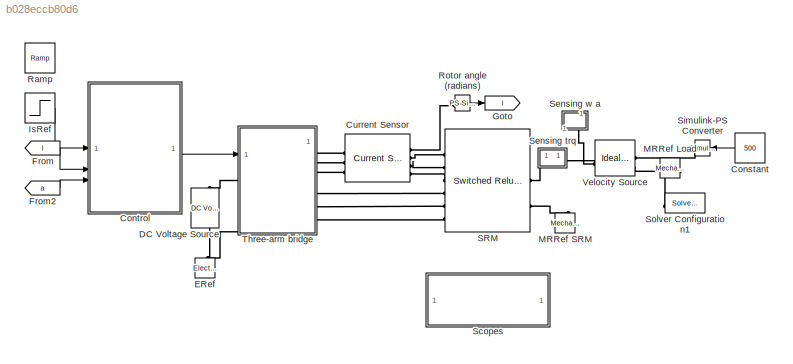
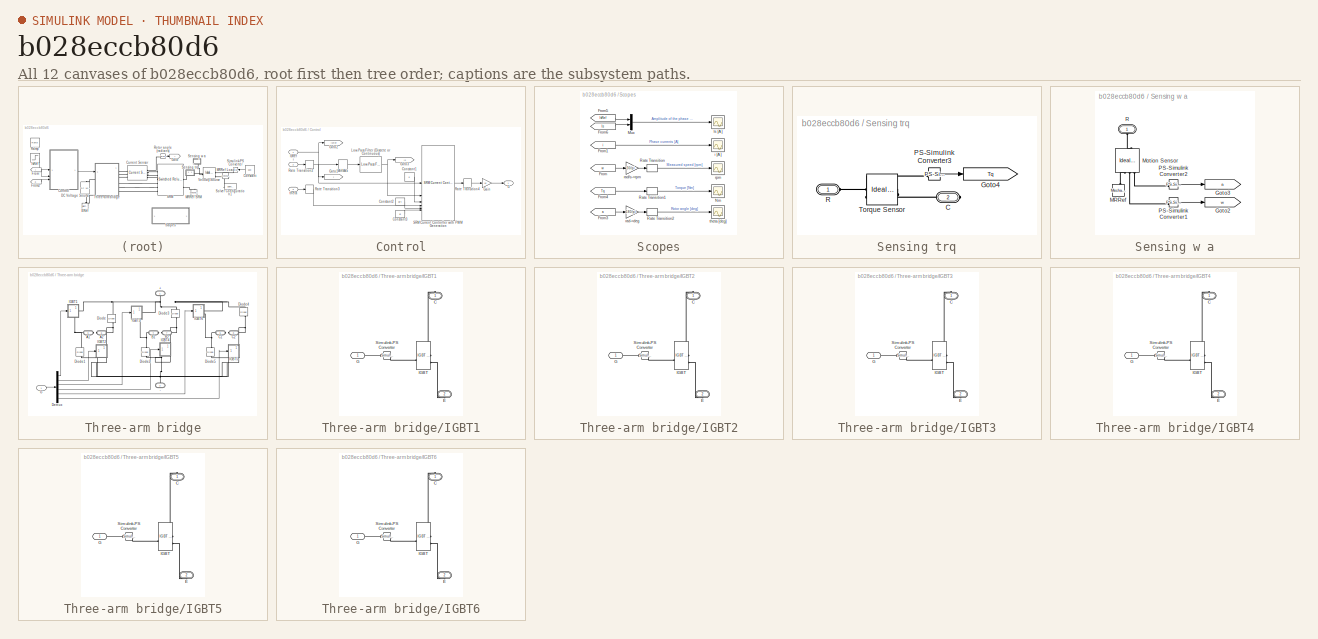
[diagram: thumbnail index - all 12 canvases of the model, root first then tree order]
MODEL slx_b028eccb80d6
KIND model
CONFIG AbsTol = auto
CONFIG EnableMultiTasking = on
CONFIG FixedStep = 1e-4
CONFIG MaxStep = auto
CONFIG MinStep = auto
CONFIG PreLoadFcn = SRMCurrentControlData;
CONFIG RelTol = 1e-3
CONFIG SampleTimeConstraint = Unconstrained
CONFIG SolverName = VariableStepAuto
CONFIG StartTime = 0.0
CONFIG StopTime = 1.5
BLOCK [Constant] Constant
  NameLocation = top
  Value = 500
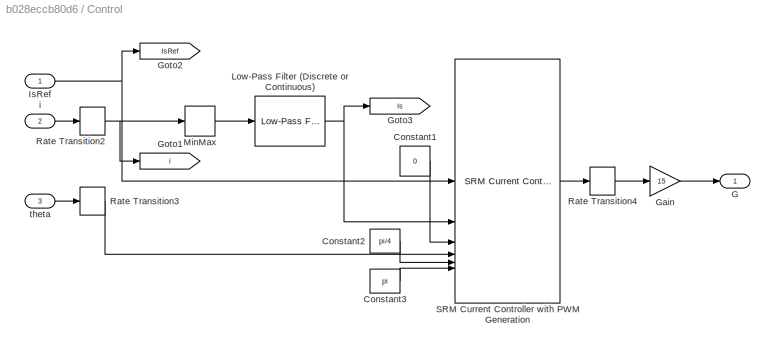
BLOCK [SubSystem] Control
BLOCK [Constant] Control/Constant1
  SampleTime = Tsc
  Value = 0
BLOCK [Constant] Control/Constant2
  NameLocation = top
  SampleTime = Tsc
  Value = pi/4
BLOCK [Constant] Control/Constant3
  NameLocation = top
  SampleTime = Tsc
  Value = pi
BLOCK [Outport] Control/G
  VectorParamsAs1DForOutWhenUnconnected = off
BLOCK [Gain] Control/Gain
  Gain = 15
BLOCK [Goto] Control/Goto1
  GotoTag = i
  TagVisibility = global
BLOCK [Goto] Control/Goto2
  GotoTag = IsRef
  TagVisibility = global
BLOCK [Goto] Control/Goto3
  GotoTag = Is
  TagVisibility = global
BLOCK [Inport] Control/IsRef
BLOCK [Reference] Control/Low-Pass Filter (Discrete or Continuous)  REF=eeGeneralControl/Low-Pass Filter
(Discrete or Continuous)
  SourceBlock = eeGeneralControl/Low-Pass Filter\n(Discrete or Continuous)
  SourceType = Low-Pass Filter (Discrete or Continuous)
BLOCK [MinMax] Control/MinMax
  Function = max
BLOCK [RateTransition] Control/Rate Transition2
  OutPortSampleTime = Tsc
BLOCK [RateTransition] Control/Rate Transition3
  OutPortSampleTime = Tsc
BLOCK [RateTransition] Control/Rate Transition4
BLOCK [Reference] Control/SRM Current Controller with PWM Generation  REF=eeSrmCurrentController/SRM Current Controller
with PWM Generation
  SourceBlock = eeSrmCurrentController/SRM Current Controller\nwith PWM Generation
  SourceType = SRM Current Controller with PWM Generation
BLOCK [Inport] Control/i
  Port = 2
BLOCK [Inport] Control/theta
  Port = 3
BLOCK [Reference] Current Sensor  REF=ee_lib/Sensors &
Transducers/Current Sensor
(Three-Phase)
  SourceBlock = ee_lib/Sensors &\nTransducers/Current Sensor\n(Three-Phase)
  SourceType = Current Sensor\n(Three-Phase)
BLOCK [Reference] DC Voltage Source  REF=fl_lib/Electrical/Electrical Sources/DC Voltage Source
  NameLocation = left
  SourceBlock = fl_lib/Electrical/Electrical Sources/DC Voltage Source
  SourceType = DC Voltage Source
BLOCK [Reference] ERef  REF=fl_lib/Electrical/Electrical Elements/Electrical Reference
  NameLocation = right
  SourceBlock = fl_lib/Electrical/Electrical Elements/Electrical Reference
  SourceType = Electrical Reference
BLOCK [From] From
  GotoTag = I
  TagVisibility = global
BLOCK [From] From2
  GotoTag = a
  TagVisibility = global
BLOCK [Goto] Goto
  GotoTag = I
  TagVisibility = global
BLOCK [Step] IsRef
  After = 100
  Before = 40
  SampleTime = Tsc
  Time = 0.75
BLOCK [Reference] MRRef Load  REF=fl_lib/Mechanical/Rotational Elements/Mechanical
Rotational Reference
  SourceBlock = fl_lib/Mechanical/Rotational Elements/Mechanical\nRotational Reference
  SourceType = Mechanical\nRotational Reference
BLOCK [Reference] MRRef SRM  REF=fl_lib/Mechanical/Rotational Elements/Mechanical
Rotational Reference
  NameLocation = left
  SourceBlock = fl_lib/Mechanical/Rotational Elements/Mechanical\nRotational Reference
  SourceType = Mechanical\nRotational Reference
BLOCK [Reference] Ramp  REF=simulink/Sources/Ramp
  Commented = on
  SourceBlock = simulink/Sources/Ramp
  SourceType = Ramp
BLOCK [Reference] Rotor angle (radians)  REF=nesl_utility/PS-Simulink
Converter
  NameLocation = top
  SourceBlock = nesl_utility/PS-Simulink\nConverter
  SourceType = PS-Simulink\nConverter
BLOCK [Reference] SRM  REF=ee_lib/Electromechanical/Reluctance & Stepper/Switched Reluctance
Machine
  SourceBlock = ee_lib/Electromechanical/Reluctance & Stepper/Switched Reluctance\nMachine
  SourceType = Switched Reluctance\nMachine
BLOCK [SubSystem] Scopes
BLOCK [From] Scopes/From
  GotoTag = w
  TagVisibility = global
BLOCK [From] Scopes/From1
  GotoTag = i
  TagVisibility = global
BLOCK [From] Scopes/From3
  GotoTag = a
  TagVisibility = global
BLOCK [From] Scopes/From4
  GotoTag = Tq
  TagVisibility = global
BLOCK [From] Scopes/From5
  GotoTag = IsRef
  TagVisibility = global
BLOCK [From] Scopes/From6
  GotoTag = Is
  TagVisibility = global
BLOCK [Scope] Scopes/Is [A]
  Floating = off
  NumInputPorts = 1
  ScopeSpecificationString = Simulink.scopes.TimeScopeBlockCfg('CurrentConfiguration', extmgr.ConfigurationSet(extmgr.Configuration('Core','General UI',true,'FigureColor',[1 1 1]),extmgr.Configuration('Core','Source UI',true),extmgr.Configuration('Sources','WiredSimulink',true,'DataLoggingVariableName','ScopeData2'),extmgr.Configuration('Visuals','Time Domain',true,'SerializedDisplays',{struct('MinYLimReal','-13.58176','MaxYL...<+1872ch>
BLOCK [Mux] Scopes/Mux
  DisplayOption = bar
  Inputs = 2
BLOCK [Scope] Scopes/Nm
  Floating = off
  NumInputPorts = 1
  ScopeSpecificationString = Simulink.scopes.TimeScopeBlockCfg('CurrentConfiguration', extmgr.ConfigurationSet(extmgr.Configuration('Core','General UI',true,'FigureColor',[1 1 1]),extmgr.Configuration('Core','Source UI',true),extmgr.Configuration('Sources','WiredSimulink',true,'DataLoggingVariableName','ScopeData1'),extmgr.Configuration('Visuals','Time Domain',true,'SerializedDisplays',{struct('MinYLimReal','-8.37189','MaxYLi...<+1682ch>
BLOCK [RateTransition] Scopes/Rate Transition
  OutPortSampleTime = Ts
BLOCK [RateTransition] Scopes/Rate Transition1
  OutPortSampleTime = Ts
BLOCK [RateTransition] Scopes/Rate Transition2
  OutPortSampleTime = Ts
BLOCK [Scope] Scopes/i [A]
  Floating = off
  NumInputPorts = 1
  ScopeSpecificationString = Simulink.scopes.TimeScopeBlockCfg('CurrentConfiguration', extmgr.ConfigurationSet(extmgr.Configuration('Core','General UI',true,'FigureColor',[1 1 1]),extmgr.Configuration('Core','Source UI',true),extmgr.Configuration('Sources','WiredSimulink',true),extmgr.Configuration('Visuals','Time Domain',true,'SerializedDisplays',{struct('MinYLimReal','-3.1447','MaxYLimReal','54.88247','YLabelReal','','MinYL...<+1659ch>
BLOCK [Gain] Scopes/rad->deg
  Gain = 180/pi
BLOCK [Gain] Scopes/rad//s->rpm
  Gain = 30/pi
BLOCK [Scope] Scopes/rpm
  Floating = off
  NumInputPorts = 1
  ScopeSpecificationString = Simulink.scopes.TimeScopeBlockCfg('CurrentConfiguration', extmgr.ConfigurationSet(extmgr.Configuration('Core','General UI',true),extmgr.Configuration('Core','Source UI',true),extmgr.Configuration('Sources','WiredSimulink',true,'DataLoggingVariableName','ScopeData2'),extmgr.Configuration('Visuals','Time Domain',true,'SerializedDisplays',{struct('MinYLimReal','400.00000','MaxYLimReal','600.00000','Y...<+1466ch>
BLOCK [Scope] Scopes/theta [deg]
  Floating = off
  NumInputPorts = 1
  ScopeSpecificationString = Simulink.scopes.TimeScopeBlockCfg('CurrentConfiguration', extmgr.ConfigurationSet(extmgr.Configuration('Core','General UI',true),extmgr.Configuration('Core','Source UI',true),extmgr.Configuration('Sources','WiredSimulink',true,'DataLoggingVariableName','ScopeData1'),extmgr.Configuration('Visuals','Time Domain',true,'SerializedDisplays',{struct('MinYLimReal','-562.5','MaxYLimReal','5062.5','YLabelR...<+1443ch>
BLOCK [SubSystem] Sensing trq
BLOCK [PMIOPort] Sensing trq/C
  Port = 2
  Side = Right
BLOCK [Goto] Sensing trq/Goto4
  GotoTag = Tq
  TagVisibility = global
BLOCK [Reference] Sensing trq/PS-Simulink Converter3  REF=nesl_utility/PS-Simulink
Converter
  SourceBlock = nesl_utility/PS-Simulink\nConverter
  SourceType = PS-Simulink\nConverter
BLOCK [PMIOPort] Sensing trq/R
  Side = Left
BLOCK [Reference] Sensing trq/Torque Sensor  REF=fl_lib/Mechanical/Mechanical Sensors/Ideal Torque Sensor
  SourceBlock = fl_lib/Mechanical/Mechanical Sensors/Ideal Torque Sensor
  SourceType = Ideal Torque Sensor
BLOCK [SubSystem] Sensing w a
  NameLocation = right
BLOCK [Goto] Sensing w a/Goto2
  GotoTag = w
  TagVisibility = global
BLOCK [Goto] Sensing w a/Goto3
  GotoTag = a
  TagVisibility = global
BLOCK [Reference] Sensing w a/MRRef  REF=fl_lib/Mechanical/Rotational Elements/Mechanical
Rotational Reference
  NameLocation = left
  SourceBlock = fl_lib/Mechanical/Rotational Elements/Mechanical\nRotational Reference
  SourceType = Mechanical\nRotational Reference
BLOCK [Reference] Sensing w a/Motion Sensor  REF=fl_lib/Mechanical/Mechanical Sensors/Ideal Rotational
Motion Sensor
  NameLocation = right
  SourceBlock = fl_lib/Mechanical/Mechanical Sensors/Ideal Rotational\nMotion Sensor
  SourceType = Ideal Rotational\nMotion Sensor
BLOCK [Reference] Sensing w a/PS-Simulink Converter1  REF=nesl_utility/PS-Simulink
Converter
  SourceBlock = nesl_utility/PS-Simulink\nConverter
  SourceType = PS-Simulink\nConverter
BLOCK [Reference] Sensing w a/PS-Simulink Converter2  REF=nesl_utility/PS-Simulink
Converter
  SourceBlock = nesl_utility/PS-Simulink\nConverter
  SourceType = PS-Simulink\nConverter
BLOCK [PMIOPort] Sensing w a/R
  NameLocation = right
  Side = Left
BLOCK [Reference] Simulink-PS Converter  REF=nesl_utility/Simulink-PS
Converter
  SourceBlock = nesl_utility/Simulink-PS\nConverter
  SourceType = Simulink-PS\nConverter
BLOCK [Reference] Solver Configuration1  REF=nesl_utility/Solver
Configuration
  SourceBlock = nesl_utility/Solver\nConfiguration
  SourceType = Solver\nConfiguration
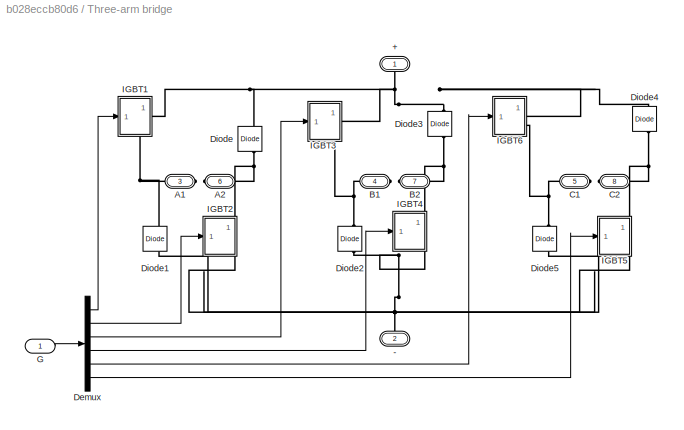
BLOCK [SubSystem] Three-arm bridge
  Tag = PublishSubsystem
BLOCK [PMIOPort] Three-arm bridge/+
  NameLocation = right
  Side = Left
BLOCK [PMIOPort] Three-arm bridge/-
  NameLocation = right
  Port = 2
  Side = Left
BLOCK [PMIOPort] Three-arm bridge/A1
  Port = 3
  Side = Right
BLOCK [PMIOPort] Three-arm bridge/A2
  Port = 6
  Side = Right
BLOCK [PMIOPort] Three-arm bridge/B1
  Port = 4
  Side = Right
BLOCK [PMIOPort] Three-arm bridge/B2
  Port = 7
  Side = Right
BLOCK [PMIOPort] Three-arm bridge/C1
  Port = 5
  Side = Right
BLOCK [PMIOPort] Three-arm bridge/C2
  Port = 8
  Side = Right
BLOCK [Demux] Three-arm bridge/Demux
  Outputs = 6
BLOCK [Reference] Three-arm bridge/Diode  REF=ee_lib/Semiconductors &
Converters/Diode
  NameLocation = right
  SourceBlock = ee_lib/Semiconductors &\nConverters/Diode
  SourceType = Diode
BLOCK [Reference] Three-arm bridge/Diode1  REF=ee_lib/Semiconductors &
Converters/Diode
  NameLocation = right
  SourceBlock = ee_lib/Semiconductors &\nConverters/Diode
  SourceType = Diode
BLOCK [Reference] Three-arm bridge/Diode2  REF=ee_lib/Semiconductors &
Converters/Diode
  NameLocation = right
  SourceBlock = ee_lib/Semiconductors &\nConverters/Diode
  SourceType = Diode
BLOCK [Reference] Three-arm bridge/Diode3  REF=ee_lib/Semiconductors &
Converters/Diode
  NameLocation = right
  SourceBlock = ee_lib/Semiconductors &\nConverters/Diode
  SourceType = Diode
BLOCK [Reference] Three-arm bridge/Diode4  REF=ee_lib/Semiconductors &
Converters/Diode
  NameLocation = right
  SourceBlock = ee_lib/Semiconductors &\nConverters/Diode
  SourceType = Diode
BLOCK [Reference] Three-arm bridge/Diode5  REF=ee_lib/Semiconductors &
Converters/Diode
  NameLocation = right
  SourceBlock = ee_lib/Semiconductors &\nConverters/Diode
  SourceType = Diode
BLOCK [Inport] Three-arm bridge/G
BLOCK [SubSystem] Three-arm bridge/IGBT1
BLOCK [PMIOPort] Three-arm bridge/IGBT1/C
  NameLocation = right
  Side = Right
BLOCK [PMIOPort] Three-arm bridge/IGBT1/E
  NameLocation = left
  Port = 2
  Side = Right
BLOCK [Inport] Three-arm bridge/IGBT1/G
BLOCK [Reference] Three-arm bridge/IGBT1/IGBT  REF=ee_lib/Semiconductors &
Converters/IGBT
(Ideal,
Switching)
  SourceBlock = ee_lib/Semiconductors &\nConverters/IGBT\n(Ideal,\nSwitching)
  SourceType = IGBT\n(Ideal,\nSwitching)
BLOCK [Reference] Three-arm bridge/IGBT1/Simulink-PS Converter  REF=nesl_utility/Simulink-PS
Converter
  SourceBlock = nesl_utility/Simulink-PS\nConverter
  SourceType = Simulink-PS\nConverter
BLOCK [SubSystem] Three-arm bridge/IGBT2
BLOCK [PMIOPort] Three-arm bridge/IGBT2/C
  NameLocation = right
  Side = Right
BLOCK [PMIOPort] Three-arm bridge/IGBT2/E
  NameLocation = left
  Port = 2
  Side = Right
BLOCK [Inport] Three-arm bridge/IGBT2/G
BLOCK [Reference] Three-arm bridge/IGBT2/IGBT  REF=ee_lib/Semiconductors &
Converters/IGBT
(Ideal,
Switching)
  SourceBlock = ee_lib/Semiconductors &\nConverters/IGBT\n(Ideal,\nSwitching)
  SourceType = IGBT\n(Ideal,\nSwitching)
BLOCK [Reference] Three-arm bridge/IGBT2/Simulink-PS Converter  REF=nesl_utility/Simulink-PS
Converter
  SourceBlock = nesl_utility/Simulink-PS\nConverter
  SourceType = Simulink-PS\nConverter
BLOCK [SubSystem] Three-arm bridge/IGBT3
BLOCK [PMIOPort] Three-arm bridge/IGBT3/C
  NameLocation = right
  Side = Right
BLOCK [PMIOPort] Three-arm bridge/IGBT3/E
  NameLocation = left
  Port = 2
  Side = Right
BLOCK [Inport] Three-arm bridge/IGBT3/G
BLOCK [Reference] Three-arm bridge/IGBT3/IGBT  REF=ee_lib/Semiconductors &
Converters/IGBT
(Ideal,
Switching)
  SourceBlock = ee_lib/Semiconductors &\nConverters/IGBT\n(Ideal,\nSwitching)
  SourceType = IGBT\n(Ideal,\nSwitching)
BLOCK [Reference] Three-arm bridge/IGBT3/Simulink-PS Converter  REF=nesl_utility/Simulink-PS
Converter
  SourceBlock = nesl_utility/Simulink-PS\nConverter
  SourceType = Simulink-PS\nConverter
BLOCK [SubSystem] Three-arm bridge/IGBT4
BLOCK [PMIOPort] Three-arm bridge/IGBT4/C
  NameLocation = right
  Side = Right
BLOCK [PMIOPort] Three-arm bridge/IGBT4/E
  NameLocation = left
  Port = 2
  Side = Right
BLOCK [Inport] Three-arm bridge/IGBT4/G
BLOCK [Reference] Three-arm bridge/IGBT4/IGBT  REF=ee_lib/Semiconductors &
Converters/IGBT
(Ideal,
Switching)
  SourceBlock = ee_lib/Semiconductors &\nConverters/IGBT\n(Ideal,\nSwitching)
  SourceType = IGBT\n(Ideal,\nSwitching)
BLOCK [Reference] Three-arm bridge/IGBT4/Simulink-PS Converter  REF=nesl_utility/Simulink-PS
Converter
  SourceBlock = nesl_utility/Simulink-PS\nConverter
  SourceType = Simulink-PS\nConverter
BLOCK [SubSystem] Three-arm bridge/IGBT5
BLOCK [PMIOPort] Three-arm bridge/IGBT5/C
  NameLocation = right
  Side = Right
BLOCK [PMIOPort] Three-arm bridge/IGBT5/E
  NameLocation = left
  Port = 2
  Side = Right
BLOCK [Inport] Three-arm bridge/IGBT5/G
BLOCK [Reference] Three-arm bridge/IGBT5/IGBT  REF=ee_lib/Semiconductors &
Converters/IGBT
(Ideal,
Switching)
  SourceBlock = ee_lib/Semiconductors &\nConverters/IGBT\n(Ideal,\nSwitching)
  SourceType = IGBT\n(Ideal,\nSwitching)
BLOCK [Reference] Three-arm bridge/IGBT5/Simulink-PS Converter  REF=nesl_utility/Simulink-PS
Converter
  SourceBlock = nesl_utility/Simulink-PS\nConverter
  SourceType = Simulink-PS\nConverter
BLOCK [SubSystem] Three-arm bridge/IGBT6
BLOCK [PMIOPort] Three-arm bridge/IGBT6/C
  NameLocation = right
  Side = Right
BLOCK [PMIOPort] Three-arm bridge/IGBT6/E
  NameLocation = left
  Port = 2
  Side = Right
BLOCK [Inport] Three-arm bridge/IGBT6/G
BLOCK [Reference] Three-arm bridge/IGBT6/IGBT  REF=ee_lib/Semiconductors &
Converters/IGBT
(Ideal,
Switching)
  SourceBlock = ee_lib/Semiconductors &\nConverters/IGBT\n(Ideal,\nSwitching)
  SourceType = IGBT\n(Ideal,\nSwitching)
BLOCK [Reference] Three-arm bridge/IGBT6/Simulink-PS Converter  REF=nesl_utility/Simulink-PS
Converter
  SourceBlock = nesl_utility/Simulink-PS\nConverter
  SourceType = Simulink-PS\nConverter
BLOCK [Reference] Velocity Source  REF=fl_lib/Mechanical/Mechanical Sources/Ideal Angular
Velocity Source
  SourceBlock = fl_lib/Mechanical/Mechanical Sources/Ideal Angular\nVelocity Source
  SourceType = Ideal Angular\nVelocity Source
LINE Constant:1 -> Simulink-PS Converter:1
LINE Control/Constant1:1 -> Control/SRM Current Controller with PWM Generation:3
LINE Control/Constant2:1 -> Control/SRM Current Controller with PWM Generation:5
LINE Control/Constant3:1 -> Control/SRM Current Controller with PWM Generation:6
LINE Control/Gain:1 -> Control/G:1
NET Control/IsRef:1 -> Control/Goto2:1, Control/SRM Current Controller with PWM Generation:1
NET Control/Low-Pass Filter (Discrete or Continuous):1 -> Control/Goto3:1, Control/SRM Current Controller with PWM Generation:2
LINE Control/MinMax:1 -> Control/Low-Pass Filter (Discrete or Continuous):1
NET Control/Rate Transition2:1 -> Control/Goto1:1, Control/MinMax:1
LINE Control/Rate Transition3:1 -> Control/SRM Current Controller with PWM Generation:4
LINE Control/Rate Transition4:1 -> Control/Gain:1
LINE Control/SRM Current Controller with PWM Generation:1 -> Control/Rate Transition4:1
LINE Control/i:1 -> Control/Rate Transition2:1
LINE Control/theta:1 -> Control/Rate Transition3:1
LINE Control:1 -> Three-arm bridge:1
LINE From2:1 -> Control:3
LINE From:1 -> Control:2
LINE IsRef:1 -> Control:1
LINE Rotor angle (radians):1 -> Goto:1
LINE Scopes/From1:1 -> Scopes/i [A]:1
LINE Scopes/From3:1 -> Scopes/rad->deg:1
LINE Scopes/From4:1 -> Scopes/Rate Transition1:1
LINE Scopes/From5:1 -> Scopes/Mux:1
LINE Scopes/From6:1 -> Scopes/Mux:2
LINE Scopes/From:1 -> Scopes/rad//s->rpm:1
LINE Scopes/Mux:1 -> Scopes/Is [A]:1
LINE Scopes/Rate Transition1:1 -> Scopes/Nm:1
LINE Scopes/Rate Transition2:1 -> Scopes/theta [deg]:1
LINE Scopes/Rate Transition:1 -> Scopes/rpm:1
LINE Scopes/rad->deg:1 -> Scopes/Rate Transition2:1
LINE Scopes/rad//s->rpm:1 -> Scopes/Rate Transition:1
LINE Sensing trq/PS-Simulink Converter3:1 -> Sensing trq/Goto4:1
LINE Sensing w a/PS-Simulink Converter1:1 -> Sensing w a/Goto2:1
LINE Sensing w a/PS-Simulink Converter2:1 -> Sensing w a/Goto3:1
LINE Three-arm bridge/Demux:1 -> Three-arm bridge/IGBT1:1
LINE Three-arm bridge/Demux:2 -> Three-arm bridge/IGBT2:1
LINE Three-arm bridge/Demux:3 -> Three-arm bridge/IGBT3:1
LINE Three-arm bridge/Demux:4 -> Three-arm bridge/IGBT4:1
LINE Three-arm bridge/Demux:5 -> Three-arm bridge/IGBT6:1
LINE Three-arm bridge/Demux:6 -> Three-arm bridge/IGBT5:1
LINE Three-arm bridge/G:1 -> Three-arm bridge/Demux:1
LINE Three-arm bridge/IGBT1/G:1 -> Three-arm bridge/IGBT1/Simulink-PS Converter:1
LINE Three-arm bridge/IGBT2/G:1 -> Three-arm bridge/IGBT2/Simulink-PS Converter:1
LINE Three-arm bridge/IGBT3/G:1 -> Three-arm bridge/IGBT3/Simulink-PS Converter:1
LINE Three-arm bridge/IGBT4/G:1 -> Three-arm bridge/IGBT4/Simulink-PS Converter:1
LINE Three-arm bridge/IGBT5/G:1 -> Three-arm bridge/IGBT5/Simulink-PS Converter:1
LINE Three-arm bridge/IGBT6/G:1 -> Three-arm bridge/IGBT6/Simulink-PS Converter:1
PLINE Current Sensor:LConn1 -- Three-arm bridge:RConn1
PLINE Current Sensor:LConn2 -- Three-arm bridge:RConn2
PLINE Current Sensor:LConn3 -- Three-arm bridge:RConn3
PLINE Current Sensor:RConn1 -- Rotor angle (radians):LConn1
PLINE Current Sensor:RConn2 -- SRM:LConn1
PLINE Current Sensor:RConn3 -- SRM:LConn2
PLINE Current Sensor:RConn4 -- SRM:LConn3
PLINE DC Voltage Source:LConn1 -- Three-arm bridge:LConn1
PNET net1: DC Voltage Source:RConn1 -- ERef:LConn1 -- Three-arm bridge:LConn2
PNET net2: MRRef Load:LConn1 -- Solver Configuration1:RConn1 -- Velocity Source:RConn2
PLINE MRRef SRM:LConn1 -- SRM:RConn2
PLINE SRM:LConn4 -- Three-arm bridge:RConn4
PLINE SRM:LConn5 -- Three-arm bridge:RConn5
PLINE SRM:LConn6 -- Three-arm bridge:RConn6
PLINE SRM:RConn1 -- Sensing trq:LConn1
PLINE Sensing trq/C:RConn1 -- Sensing trq/Torque Sensor:RConn1
PLINE Sensing trq/PS-Simulink Converter3:LConn1 -- Sensing trq/Torque Sensor:RConn2
PLINE Sensing trq/R:RConn1 -- Sensing trq/Torque Sensor:LConn1
PNET net3: Sensing trq:RConn1 -- Sensing w a:LConn1 -- Velocity Source:LConn1
PLINE Sensing w a/MRRef:LConn1 -- Sensing w a/Motion Sensor:RConn1
PLINE Sensing w a/Motion Sensor:LConn1 -- Sensing w a/R:RConn1
PLINE Sensing w a/Motion Sensor:RConn2 -- Sensing w a/PS-Simulink Converter1:LConn1
PLINE Sensing w a/Motion Sensor:RConn3 -- Sensing w a/PS-Simulink Converter2:LConn1
PLINE Simulink-PS Converter:RConn1 -- Velocity Source:RConn1
PNET net4: Three-arm bridge/+:RConn1 -- Three-arm bridge/Diode3:RConn1 -- Three-arm bridge/Diode4:RConn1 -- Three-arm bridge/Diode:RConn1 -- Three-arm bridge/IGBT1:RConn1 -- Three-arm bridge/IGBT3:RConn1 -- Three-arm bridge/IGBT6:RConn1
PNET net5: Three-arm bridge/-:RConn1 -- Three-arm bridge/Diode1:LConn1 -- Three-arm bridge/Diode2:LConn1 -- Three-arm bridge/Diode5:LConn1 -- Three-arm bridge/IGBT2:RConn2 -- Three-arm bridge/IGBT4:RConn2 -- Three-arm bridge/IGBT5:RConn2
PNET net6: Three-arm bridge/A1:RConn1 -- Three-arm bridge/Diode1:RConn1 -- Three-arm bridge/IGBT1:RConn2
PNET net7: Three-arm bridge/A2:RConn1 -- Three-arm bridge/Diode:LConn1 -- Three-arm bridge/IGBT2:RConn1
PNET net8: Three-arm bridge/B1:RConn1 -- Three-arm bridge/Diode2:RConn1 -- Three-arm bridge/IGBT3:RConn2
PNET net9: Three-arm bridge/B2:RConn1 -- Three-arm bridge/Diode3:LConn1 -- Three-arm bridge/IGBT4:RConn1
PNET net10: Three-arm bridge/C1:RConn1 -- Three-arm bridge/Diode5:RConn1 -- Three-arm bridge/IGBT6:RConn2
PNET net11: Three-arm bridge/C2:RConn1 -- Three-arm bridge/Diode4:LConn1 -- Three-arm bridge/IGBT5:RConn1
PLINE Three-arm bridge/IGBT1/C:RConn1 -- Three-arm bridge/IGBT1/IGBT:RConn1
PLINE Three-arm bridge/IGBT1/E:RConn1 -- Three-arm bridge/IGBT1/IGBT:RConn2
PLINE Three-arm bridge/IGBT1/IGBT:LConn1 -- Three-arm bridge/IGBT1/Simulink-PS Converter:RConn1
PLINE Three-arm bridge/IGBT2/C:RConn1 -- Three-arm bridge/IGBT2/IGBT:RConn1
PLINE Three-arm bridge/IGBT2/E:RConn1 -- Three-arm bridge/IGBT2/IGBT:RConn2
PLINE Three-arm bridge/IGBT2/IGBT:LConn1 -- Three-arm bridge/IGBT2/Simulink-PS Converter:RConn1
PLINE Three-arm bridge/IGBT3/C:RConn1 -- Three-arm bridge/IGBT3/IGBT:RConn1
PLINE Three-arm bridge/IGBT3/E:RConn1 -- Three-arm bridge/IGBT3/IGBT:RConn2
PLINE Three-arm bridge/IGBT3/IGBT:LConn1 -- Three-arm bridge/IGBT3/Simulink-PS Converter:RConn1
PLINE Three-arm bridge/IGBT4/C:RConn1 -- Three-arm bridge/IGBT4/IGBT:RConn1
PLINE Three-arm bridge/IGBT4/E:RConn1 -- Three-arm bridge/IGBT4/IGBT:RConn2
PLINE Three-arm bridge/IGBT4/IGBT:LConn1 -- Three-arm bridge/IGBT4/Simulink-PS Converter:RConn1
PLINE Three-arm bridge/IGBT5/C:RConn1 -- Three-arm bridge/IGBT5/IGBT:RConn1
PLINE Three-arm bridge/IGBT5/E:RConn1 -- Three-arm bridge/IGBT5/IGBT:RConn2
PLINE Three-arm bridge/IGBT5/IGBT:LConn1 -- Three-arm bridge/IGBT5/Simulink-PS Converter:RConn1
PLINE Three-arm bridge/IGBT6/C:RConn1 -- Three-arm bridge/IGBT6/IGBT:RConn1
PLINE Three-arm bridge/IGBT6/E:RConn1 -- Three-arm bridge/IGBT6/IGBT:RConn2
PLINE Three-arm bridge/IGBT6/IGBT:LConn1 -- Three-arm bridge/IGBT6/Simulink-PS Converter:RConn1
note: NET lines group one-source signal fan-out (src -> all destinations, sorted); 1:1 wires keep LINE; PNET lines group multi-terminal physical nets as a canonical sorted terminal list (undirected conserving connections); 2-terminal nets keep the pairwise PLINE form
